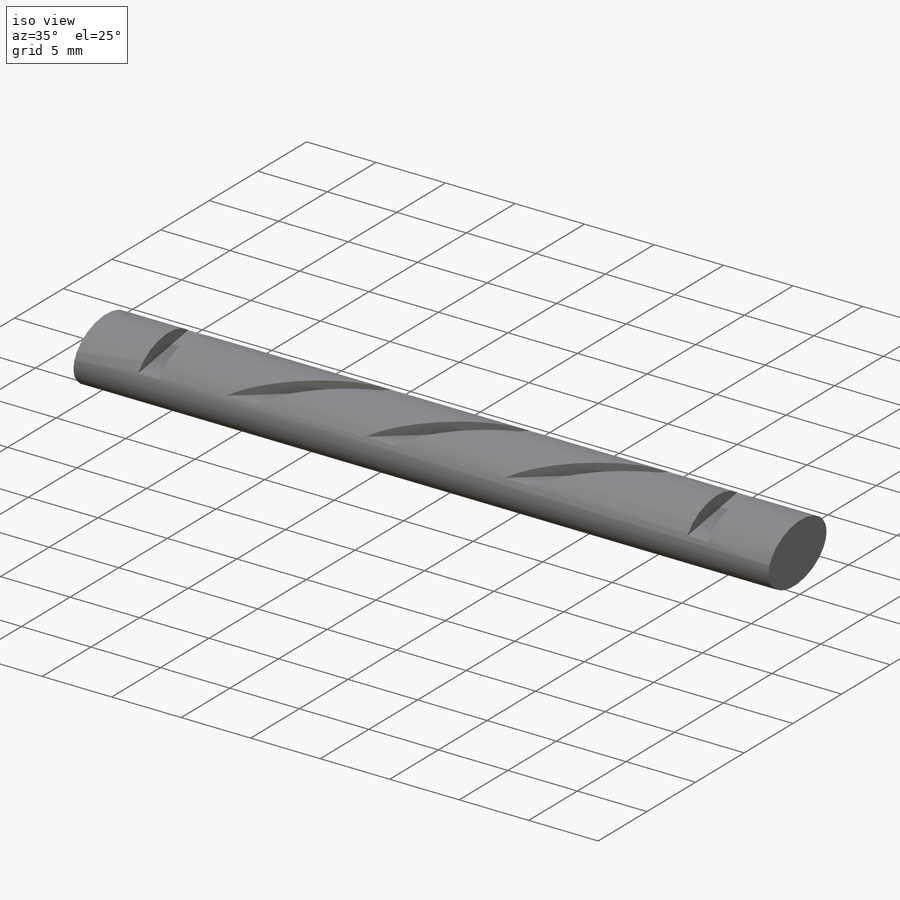
[diagram: iso view]
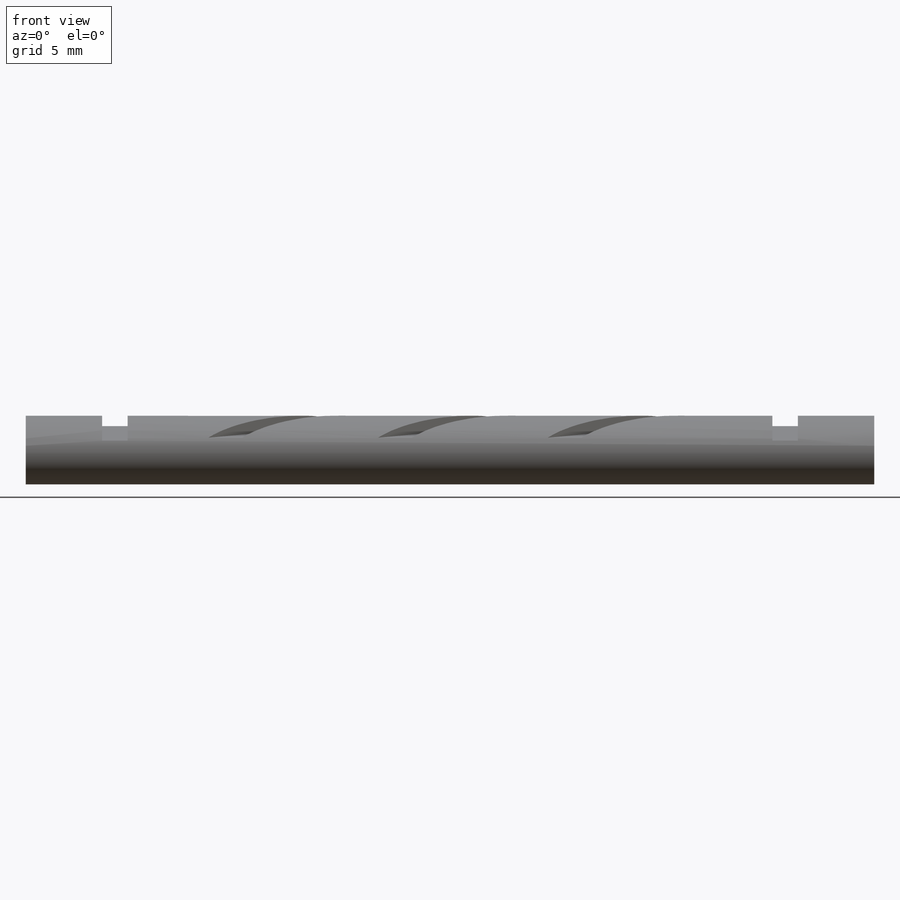
[diagram: front view]
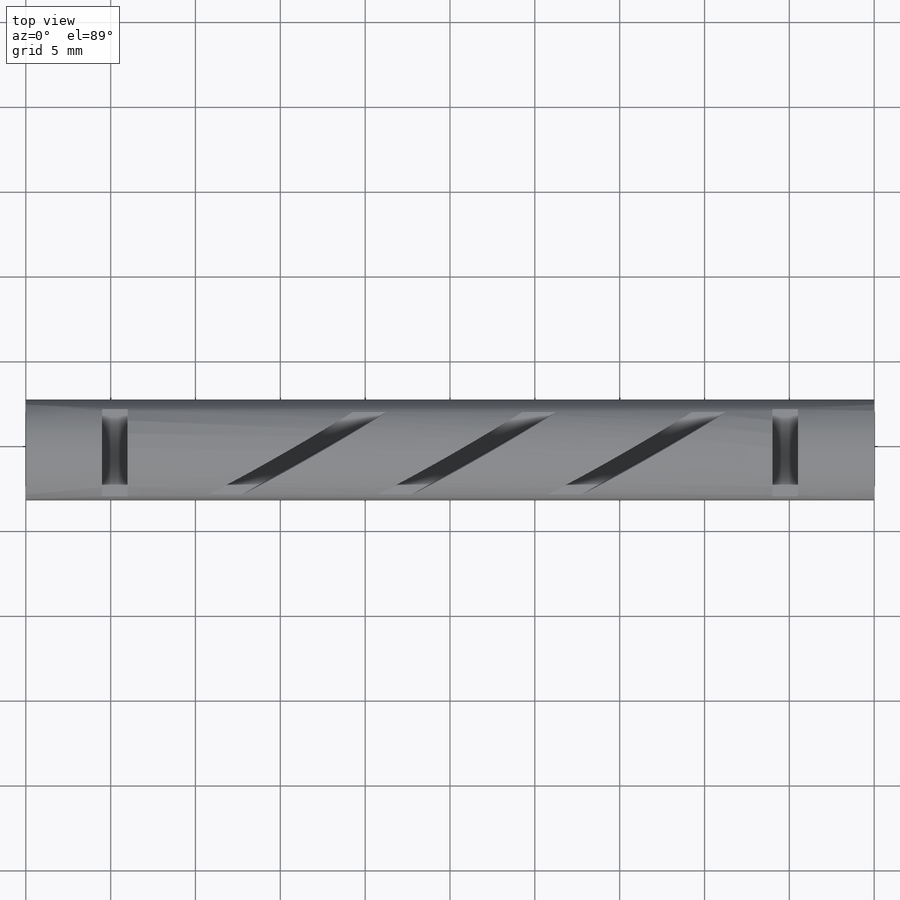
[diagram: top view]
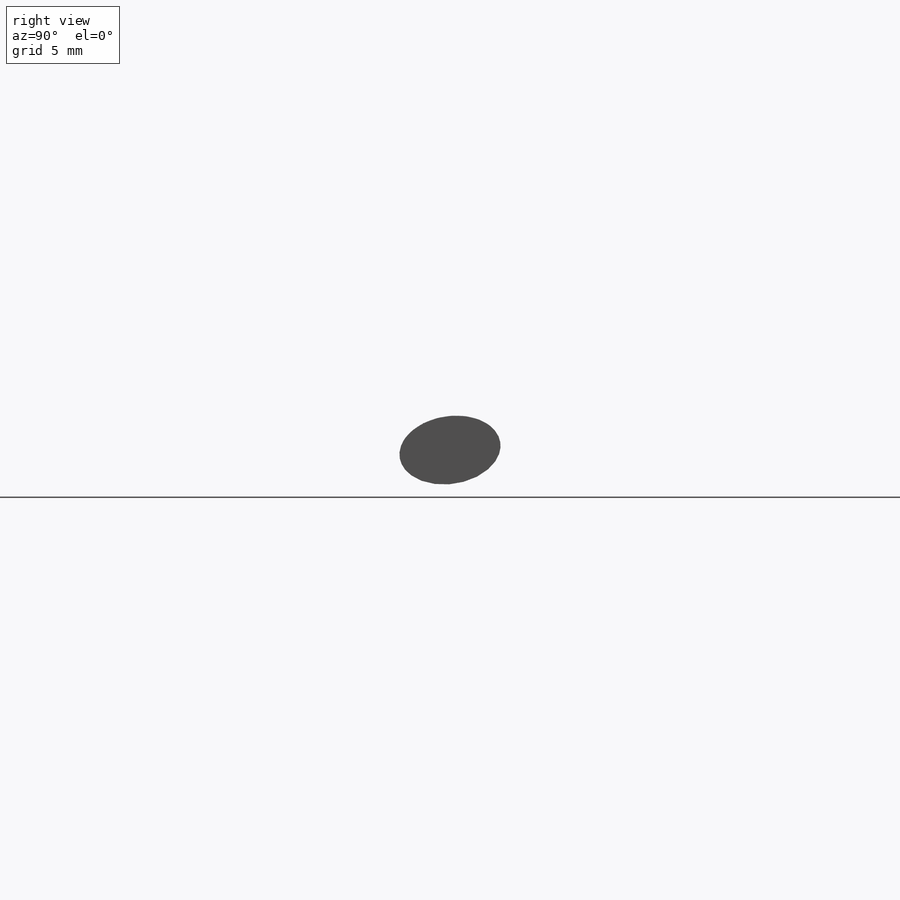
[diagram: right view]
SOLIDWORKS PART (.sldprt)
format: sldprt  version: not decoded by parser v0  size: 811,520 bytes
history: native  units: mm
features: sketch x12, plane x9, pattern_linear x7, mirror x5, pattern_circular x4, cut_extrude x2, material x1, extrude x1 (+9 scaffold rows collapsed)
feature tree (50):
  scaffold x9  (default folders/planes/origin — collapsed)
  material  "材质 <未指定>"
  plane  "前视基准面"
  plane  "上视基准面"
  plane  "右视基准面"
  sketch  "草图1"  dims[D3=80.0mm D4=80.0mm D6=60.0mm D1=52.5mm D2=105.0mm D5=65.0mm D7=2.0mm D8=2.0mm D9=2.0mm]
  sketch  "草图2"  dims[c1.D1=2.0mm c1.D2=3.0mm c1.D3=30.0mm c2.D3=~9.463981deg]
  extrude  "凸台-拉伸1"  Depth=50mm
  plane  "基准面2"
  sketch  "草图5"  dims[D1=4.5mm D2=1.0mm D3=1.5mm]
  cut_extrude  "切除-拉伸2"  Depth=50mm
  plane  "基准面1"  Offset=25mm
  mirror  "镜向2"
  plane  "基准面3"
  sketch  "草图7"  dims[D1=1.0mm]
  cut_extrude  "切除-拉伸4"  Depth=50mm
  sketch  "草图8"
  pattern_linear  "阵列(线性)1"  Count1=2 Count2=1 Spacing1=10mm Spacing2=50mm
  pattern_linear  "阵列(线性)2"  Count1=2 Count2=1 Spacing1=10mm Spacing2=50mm
  sketch  "草图9"
  mirror  "基准轴2"
  pattern_circular  "阵列(圆周)3"  Count=3 Angle=60deg
  pattern_circular  "阵列(圆周)4"  Count=2 Angle=30deg
  pattern_linear  "阵列(线性)3"  Count1=6 Count2=1 Spacing1=15.7mm Spacing2=50mm
  pattern_linear  "阵列(线性)4"  Count1=5 Count2=1 Spacing1=15.7mm Spacing2=50mm
  sketch  "草图10"  dims[D1=2.0mm D2=3.0mm D3=15.0mm]
  pattern_linear  "阵列(线性)5"  Count1=2 Count2=1 Spacing1=15mm Spacing2=50mm
  plane  "基准面4"
  sketch  "草图11"
  mirror  "基准轴3"
  pattern_circular  "阵列(圆周)5"  Count=6 Angle=120deg
  sketch  "草图12"
  pattern_linear  "阵列(线性)6"  Count1=2 Count2=1 Spacing1=18mm Spacing2=50mm
  plane  "基准面5"
  sketch  "草图13"
  mirror  "基准轴4"
  pattern_circular  "阵列(圆周)6"  Count=6 Angle=120deg
  pattern_linear  "阵列(线性)7"  Count1=7 Count2=1 Spacing1=17mm Spacing2=50mm
  plane  "基准面6"  Offset=5.25mm
  sketch  "草图14"
  sketch  "草图15"  dims[D1=1.0mm]
  mirror  "镜向3"
decode coverage: 20 of 31 modeling features carry decoded parameters
note: ~ marks probable driven/reference dimensions
note: suppression state not decoded; provenance and decode notes live in map.json
